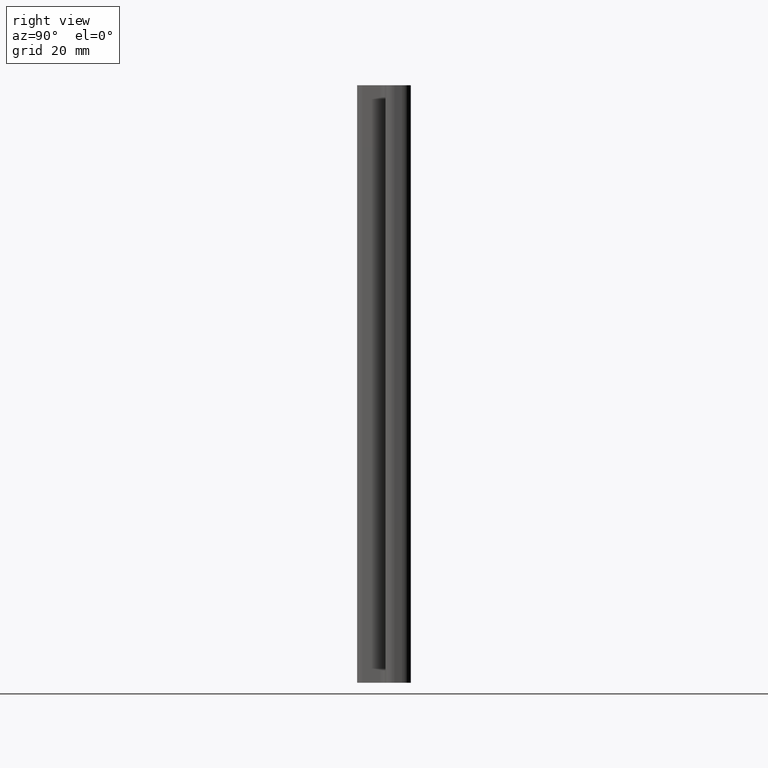
[diagram: clean part render]
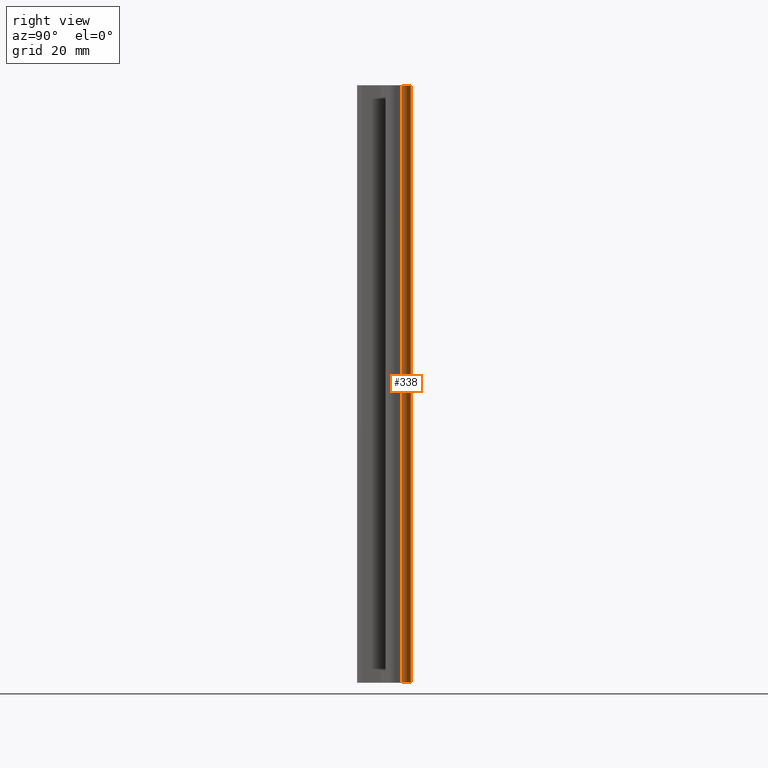
[diagram: same view with one face highlighted and labeled with its STEP entity id]
A machine part, right view. The second image highlights one B-rep face of the part: STEP entity #338.
In plain terms, the highlighted cylindrical surface (edge-blend (fillet) strip) has radius 3 mm, axis along (0, 0, 1).
Its self-contained STEP definition (entity closure, byte-faithful):
#27=CIRCLE('',#383,2.99999999999422);
#28=CIRCLE('',#384,2.99999999999422);
#37=CYLINDRICAL_SURFACE('',#382,2.99999999999422);
#52=FACE_OUTER_BOUND('',#70,.T.);
#70=EDGE_LOOP('',(#271,#272,#273,#274));
#102=LINE('',#574,#134);
#103=LINE('',#580,#135);
#134=VECTOR('',#470,10.);
#135=VECTOR('',#477,10.);
#165=VERTEX_POINT('',#570);
#166=VERTEX_POINT('',#572);
#167=VERTEX_POINT('',#576);
#168=VERTEX_POINT('',#578);
#210=EDGE_CURVE('',#165,#166,#102,.T.);
#211=EDGE_CURVE('',#167,#165,#27,.T.);
#212=EDGE_CURVE('',#168,#166,#28,.T.);
#213=EDGE_CURVE('',#167,#168,#103,.T.);
#271=ORIENTED_EDGE('',*,*,#211,.T.);
#272=ORIENTED_EDGE('',*,*,#210,.T.);
#273=ORIENTED_EDGE('',*,*,#212,.F.);
#274=ORIENTED_EDGE('',*,*,#213,.F.);
#338=ADVANCED_FACE('',(#52),#37,.T.);
#382=AXIS2_PLACEMENT_3D('',#575,#471,#472);
#383=AXIS2_PLACEMENT_3D('',#577,#473,#474);
#384=AXIS2_PLACEMENT_3D('',#579,#475,#476);
#470=DIRECTION('',(0.,0.,1.));
#471=DIRECTION('center_axis',(0.,0.,1.));
#472=DIRECTION('ref_axis',(1.,-2.22044604925459E-15,0.));
#473=DIRECTION('center_axis',(0.,0.,1.));
#474=DIRECTION('ref_axis',(1.,-2.22044604925459E-15,0.));
#475=DIRECTION('center_axis',(0.,0.,1.));
#476=DIRECTION('ref_axis',(1.,-2.22044604925459E-15,0.));
#477=DIRECTION('',(0.,0.,1.));
#570=CARTESIAN_POINT('',(58.022359531181,17.9999999048845,0.));
#572=CARTESIAN_POINT('',(58.022359531181,17.9999999048845,200.));
#574=CARTESIAN_POINT('',(58.022359531181,17.9999999048845,0.));
#575=CARTESIAN_POINT('Origin',(58.022359528393,14.9999999048903,0.));
#576=CARTESIAN_POINT('',(61.0223595283873,14.9999999048903,0.));
#577=CARTESIAN_POINT('Origin',(58.022359528393,14.9999999048903,0.));
#578=CARTESIAN_POINT('',(61.0223595283873,14.9999999048903,200.));
#579=CARTESIAN_POINT('Origin',(58.022359528393,14.9999999048903,200.));
#580=CARTESIAN_POINT('',(61.0223595283873,14.9999999048903,0.));